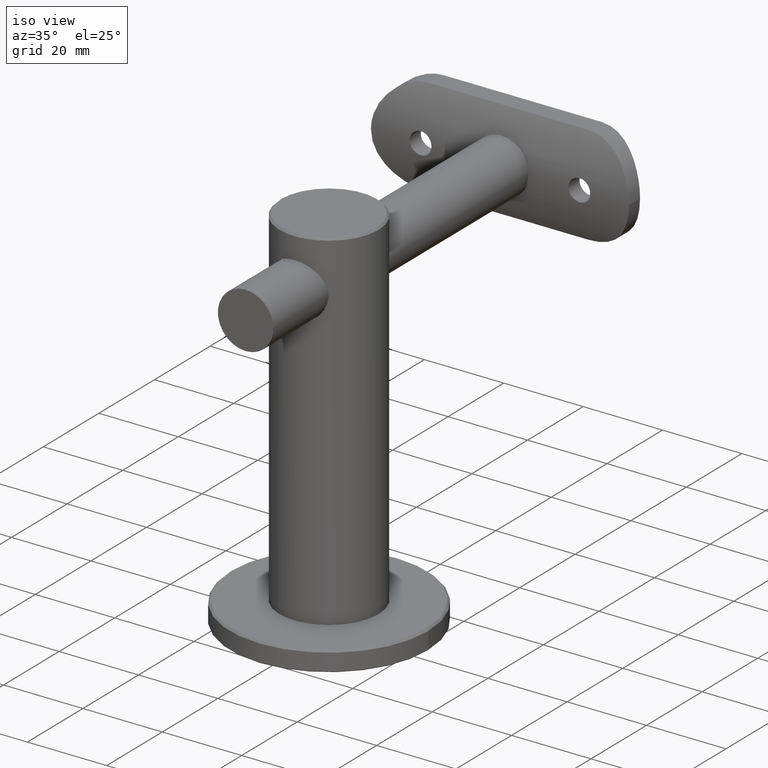
[diagram: clean part render]
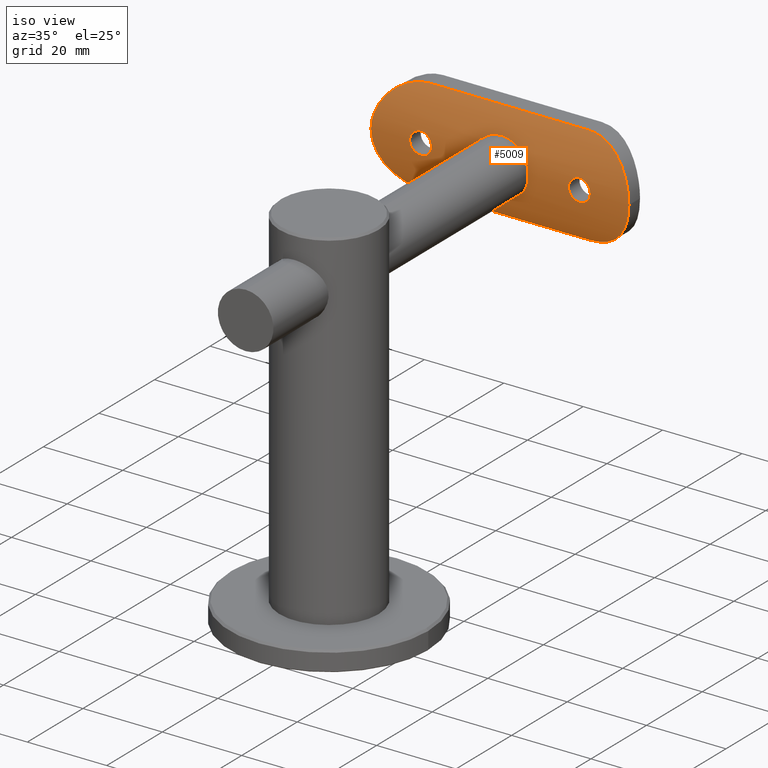
[diagram: same view with one face highlighted and labeled with its STEP entity id]
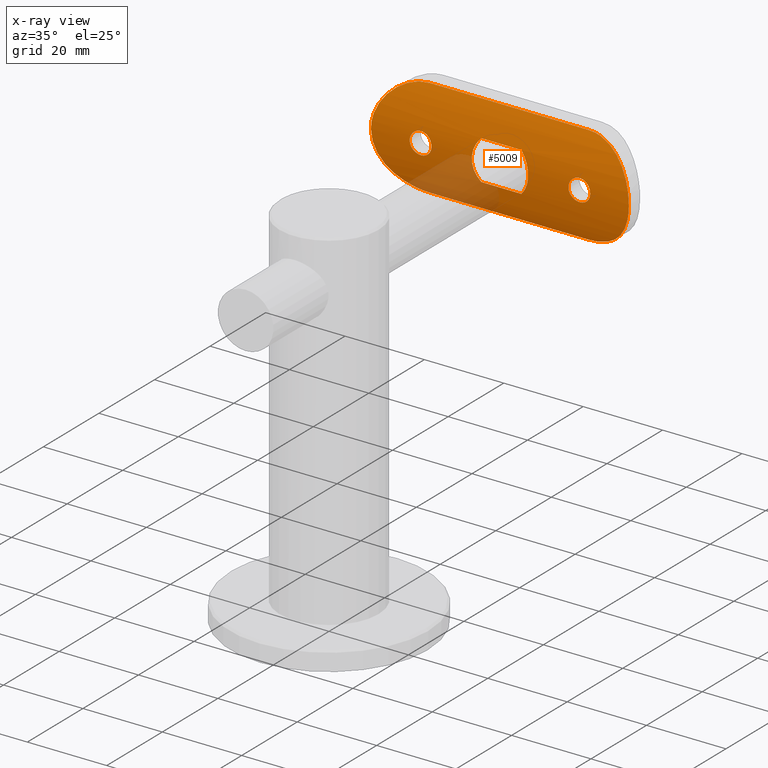
[diagram: x-ray of the same camera — body ghosted, the highlighted face saturated]
A machine part, iso view. The second image highlights one B-rep face of the part: STEP entity #5009.
The next image is the same camera in x-ray: the body ghosted, the highlighted face saturated — about 12% of this face is hidden behind the body in this view.
In plain terms, the highlighted cylindrical surface (partial cylindrical patch) has radius 25.2 mm, axis along (1, -0, 0).
Its self-contained STEP definition (entity closure, byte-faithful):
#1 = CARTESIAN_POINT ( 'NONE',  ( 2.073653546376744900, 0.08513349553396418200, 21.81532595737790800 ) ) ;
#87 = CARTESIAN_POINT ( 'NONE',  ( -12.06660317602190500, 3.076343127531646600, 23.28902056191594000 ) ) ;
#111 = B_SPLINE_CURVE_WITH_KNOTS ( 'NONE', 3,
 ( #5653, #5470, #17830, #11988, #10469, #9129, #7841, #16624, #15221, #9578, #15545, #3729, #4095, #7056, #12914, #17619, #11637, #14542, #4521, #1604, #11768, #7288, #4464, #14673, #1, #14607, #10264, #5940, #13272, #7362, #8900, #14741, #18859, #6012, #17551, #1478, #16221, #2946, #13148, #7485, #8840, #195, #1414, #10445, #1676, #11899, #15964, #7228, #2878, #17424, #8715, #4324, #5808, #17743, #11963, #3269, #266, #13596, #14937, #3336, #13531, #3203, #4839, #2002 ),
 .UNSPECIFIED., .T., .F.,
 ( 4, 2, 2, 2, 2, 2, 2, 2, 2, 2, 2, 2, 2, 2, 2, 2, 2, 2, 2, 2, 2, 2, 2, 2, 2, 2, 2, 2, 2, 2, 2, 4 ),
 ( 0.0000000000000000000, 0.0005376963078605473300, 0.001075392615721094700, 0.001613088923581641700, 0.002150785231442188900, 0.002688481539302735700, 0.003226177847163282900, 0.003763874155023830500, 0.004301570462884377700, 0.004839266770744924500, 0.005376963078605472200, 0.005914659386466019800, 0.006452355694326566600, 0.006990052002187115100, 0.007527748310047661900, 0.008065444617908208700, 0.008603140925768755500, 0.009140837233629302300, 0.009678533541489849100, 0.01021622984935039800, 0.01075392615721094400, 0.01129162246507149100, 0.01182931877293204000, 0.01236701508079258600, 0.01290471138865313300, 0.01344240769651368200, 0.01398010400437423000, 0.01451780031223477700, 0.01505549662009532400, 0.01559319292795587100, 0.01613088923581641700, 0.01720628185153751100 ),
 .UNSPECIFIED. ) ;
#195 = CARTESIAN_POINT ( 'NONE',  ( -2.069558421788440800, 0.08480296112250522400, 21.81976993483585800 ) ) ;
#266 = CARTESIAN_POINT ( 'NONE',  ( -2.072726223509238100, 0.08506532795061354200, 18.18383943284823100 ) ) ;
#317 = CARTESIAN_POINT ( 'NONE',  ( 1.817061344522501000, 0.06526613155028911100, -17.92786693666336000 ) ) ;
#381 = CARTESIAN_POINT ( 'NONE',  ( 1.676634523661784800, 0.05539215588773881100, -22.18716190209918800 ) ) ;
#418 = CARTESIAN_POINT ( 'NONE',  ( 1.830359086947568100, 0.06557914085616385600, 6.863909200536369300 ) ) ;
#420 = CARTESIAN_POINT ( 'NONE',  ( -2.273074970050259900, 0.1017439551615989100, -6.730274443208860400 ) ) ;
#444 = CARTESIAN_POINT ( 'NONE',  ( 2.185263950968388000, 0.09472546798508069100, -21.67922847164829000 ) ) ;
#565 = CARTESIAN_POINT ( 'NONE',  ( -8.562141571826803200, 1.497233673915071600, -29.11593343704042900 ) ) ;
#763 = CARTESIAN_POINT ( 'NONE',  ( 6.305223603466181700, 0.7914857843385466600, 30.82374023567219400 ) ) ;
#782 = CARTESIAN_POINT ( 'NONE',  ( -2.069558421788440800, 0.08480296112250522400, -18.18023006516413500 ) ) ;
#828 = CARTESIAN_POINT ( 'NONE',  ( 2.886391478844331400, 0.1625181075792130100, 32.16925023365995900 ) ) ;
#890 = CARTESIAN_POINT ( 'NONE',  ( 7.315607594578458400, 1.082687997029818900, 30.14380031678956200 ) ) ;
#910 = CARTESIAN_POINT ( 'NONE',  ( -1.819417407537205600, 0.06544494374165607500, -22.06986799106862700 ) ) ;
#937 = VERTEX_POINT ( 'NONE', #4509 ) ;
#945 = CARTESIAN_POINT ( 'NONE',  ( -4.994997497496856700, 0.4999999999999991700, -5.045790324617162700 ) ) ;
#976 = CARTESIAN_POINT ( 'NONE',  ( -2.470123651906078500, 0.1212575395616176900, -18.77792789282884900 ) ) ;
#985 = DIRECTION ( 'NONE',  ( -0.0000000000000000000, -0.0000000000000000000, -1.000000000000000000 ) ) ;
#1030 = ORIENTED_EDGE ( 'NONE', *, *, #15794, .T. ) ;
#1072 = EDGE_CURVE ( 'NONE', #17527, #17527, #4319, .T. ) ;
#1096 = CARTESIAN_POINT ( 'NONE',  ( -2.731820268643169400, 0.1484849599549444800, -19.63697138104300400 ) ) ;
#1202 = CARTESIAN_POINT ( 'NONE',  ( 12.50000000000000000, 3.318729470161015300, -20.00000000000000400 ) ) ;
#1414 = CARTESIAN_POINT ( 'NONE',  ( -2.185750387791615300, 0.09477035522006684000, 21.67847060494677800 ) ) ;
#1478 = CARTESIAN_POINT ( 'NONE',  ( -0.7120159435524258100, 0.009435281127677450400, 22.66238119459136900 ) ) ;
#1534 = ORIENTED_EDGE ( 'NONE', *, *, #15554, .T. ) ;
#1541 = LINE ( 'NONE', #5332, #7486 ) ;
#1554 = CARTESIAN_POINT ( 'NONE',  ( -11.68341459577139600, 2.871341540761538400, 24.46233648995673000 ) ) ;
#1604 = CARTESIAN_POINT ( 'NONE',  ( 2.662015092243951400, 0.1409712463223793700, 20.71310843724691600 ) ) ;
#1676 = CARTESIAN_POINT ( 'NONE',  ( -2.470123651906078500, 0.1212575395616176900, 21.22207210717114700 ) ) ;
#1752 = CARTESIAN_POINT ( 'NONE',  ( -9.398516132625633900, 1.816575251650668400, 28.25106046154295900 ) ) ;
#1763 = CARTESIAN_POINT ( 'NONE',  ( 0.4656168709977870900, 6.200468506438461300E-005, -7.099779927010543700 ) ) ;
#1826 = CARTESIAN_POINT ( 'NONE',  ( 3.133655492777244900, 0.1947508517584462800, -6.375227489737989500 ) ) ;
#1843 = CARTESIAN_POINT ( 'NONE',  ( 12.50000000000000000, 3.318729470161016200, 20.84092147420122400 ) ) ;
#1892 = CARTESIAN_POINT ( 'NONE',  ( 2.914907161408982500, 0.1682403631973951900, 6.478125833712447900 ) ) ;
#1921 = CARTESIAN_POINT ( 'NONE',  ( 2.073653546376744900, 0.08513349553396418200, -18.18467404262209900 ) ) ;
#1974 = CARTESIAN_POINT ( 'NONE',  ( 1.209856822645558900E-015, 0.0000000000000000000, -32.50000000000000000 ) ) ;
#1976 = VERTEX_POINT ( 'NONE', #17441 ) ;
#2002 = CARTESIAN_POINT ( 'NONE',  ( -3.022213555803343600E-015, 1.003890900449541200E-018, 17.25000000000000000 ) ) ;
#2015 = ORIENTED_EDGE ( 'NONE', *, *, #10316, .T. ) ;
#2164 = CARTESIAN_POINT ( 'NONE',  ( 10.15187181039420300, 2.133985303426431600, 27.30437927746717700 ) ) ;
#2290 = CARTESIAN_POINT ( 'NONE',  ( 12.07039748615804700, 3.078414103210624000, 23.27518083691608900 ) ) ;
#2360 = B_SPLINE_CURVE_WITH_KNOTS ( 'NONE', 3,
 ( #11487, #5457, #2720, #9941, #8501, #11370, #15876, #7143, #11312, #2783, #2616, #14447, #5584, #12933, #15636, #11427, #18656, #12825, #8380, #4064, #6902, #14272, #5525, #15758, #10000, #1202 ),
 .UNSPECIFIED., .F., .F.,
 ( 4, 2, 2, 2, 2, 2, 2, 2, 2, 2, 2, 2, 4 ),
 ( 2.353484509981722500E-018, 0.002483427128890327100, 0.003725140693335492400, 0.004966854257780656800, 0.007450281386670990800, 0.008691994951116157800, 0.009933708515561325700, 0.01117542208000649500, 0.01241713564445166100, 0.01490056277334198700, 0.01614227633778715600, 0.01738398990223232300, 0.01986741703112264800 ),
 .UNSPECIFIED. ) ;
#2376 = CARTESIAN_POINT ( 'NONE',  ( -2.661578037767907900, 0.1409247949840577200, -19.28541333120258000 ) ) ;
#2382 = EDGE_CURVE ( 'NONE', #4321, #14128, #16520, .T. ) ;
#2616 = CARTESIAN_POINT ( 'NONE',  ( 7.643915563752460500, 1.185045859685578000, -29.89864509263436400 ) ) ;
#2656 = CARTESIAN_POINT ( 'NONE',  ( -1.209856822645562100E-015, 0.0000000000000000000, 32.50000000000000000 ) ) ;
#2720 = CARTESIAN_POINT ( 'NONE',  ( 1.664684350995175600, 0.04192139592814692100, -32.41608617209117700 ) ) ;
#2767 = CARTESIAN_POINT ( 'NONE',  ( -0.8406273536774224700, -1.486542822431297100E-016, 32.50000000000000000 ) ) ;
#2783 = CARTESIAN_POINT ( 'NONE',  ( 7.316861939614360800, 1.083062932609342200, -30.14291416132809700 ) ) ;
#2832 = CARTESIAN_POINT ( 'NONE',  ( -1.664684350995174100, 0.04192139592814297200, 32.41608617209118400 ) ) ;
#2878 = CARTESIAN_POINT ( 'NONE',  ( -2.749828545533612400, 0.1504801842529881500, 20.18432670744931200 ) ) ;
#2946 = CARTESIAN_POINT ( 'NONE',  ( -1.216669511711981500, 0.02884268894349241800, 22.47271114161703700 ) ) ;
#3029 = CARTESIAN_POINT ( 'NONE',  ( -12.41600094213971900, 3.270152093552302300, 21.66693629175975000 ) ) ;
#3096 = CARTESIAN_POINT ( 'NONE',  ( -12.49999999999999800, 3.318729470161012200, 20.84105733039344700 ) ) ;
#3106 = CARTESIAN_POINT ( 'NONE',  ( -2.281614636188990600, 0.09982408389272989800, 6.739271544212016400 ) ) ;
#3107 = CARTESIAN_POINT ( 'NONE',  ( -3.123006625712111600, 0.1934196831263914100, -6.380438473769691800 ) ) ;
#3187 = CARTESIAN_POINT ( 'NONE',  ( -1.209856822645562100E-015, 0.0000000000000000000, 32.50000000000000000 ) ) ;
#3203 = CARTESIAN_POINT ( 'NONE',  ( -0.7249299550236874000, 0.008254449365853299600, 17.32320072217374100 ) ) ;
#3221 = CARTESIAN_POINT ( 'NONE',  ( -8.562866471435933500, 1.497495063479010700, 29.11525600394245900 ) ) ;
#3258 = CARTESIAN_POINT ( 'NONE',  ( 2.386301682847428800, 0.1130362111777580100, -21.37867729140496600 ) ) ;
#3269 = CARTESIAN_POINT ( 'NONE',  ( -2.188670967206007000, 0.09502580618899343600, 18.32533766186938700 ) ) ;
#3296 = CARTESIAN_POINT ( 'NONE',  ( 4.665793147243431500, 0.4334261171789093900, -5.371680779806795600 ) ) ;
#3336 = CARTESIAN_POINT ( 'NONE',  ( -1.380855856035093600, 0.03741134485516903200, 17.61496082815984100 ) ) ;
#3360 = CARTESIAN_POINT ( 'NONE',  ( -4.994997497496856700, 0.4999999999999991700, 5.045790324617160900 ) ) ;
#3361 = CARTESIAN_POINT ( 'NONE',  ( -1.603205227917014400, 0.05000980514690531900, -6.920540569811120000 ) ) ;
#3387 = CARTESIAN_POINT ( 'NONE',  ( -0.8856267548469305400, 0.01502212965470483600, -17.39035436472577300 ) ) ;
#3550 = CARTESIAN_POINT ( 'NONE',  ( 4.665759523029464600, 0.4334193174677872800, 5.371714065546747500 ) ) ;
#3586 = CARTESIAN_POINT ( 'NONE',  ( 12.50000000000000000, 3.318729470161015300, 32.50000000000000000 ) ) ;
#3702 = CARTESIAN_POINT ( 'NONE',  ( -2.185750387791615300, 0.09477035522006684000, -18.32152939505322200 ) ) ;
#3729 = CARTESIAN_POINT ( 'NONE',  ( 2.386301682847428800, 0.1130362111777580100, 18.62132270859503800 ) ) ;
#3744 = CARTESIAN_POINT ( 'NONE',  ( 5.594010815491765600, 0.6168360506386491000, 31.20802645236640800 ) ) ;
#4064 = CARTESIAN_POINT ( 'NONE',  ( 11.68341459577140100, 2.871341540761537000, -24.46233648995672600 ) ) ;
#4095 = CARTESIAN_POINT ( 'NONE',  ( 2.471650428507672400, 0.1214095703856710900, 18.78118374155257400 ) ) ;
#4319 = B_SPLINE_CURVE_WITH_KNOTS ( 'NONE', 3,
 ( #7673, #9217, #14927, #10559, #9091, #5211, #16458, #381, #6717, #15380, #444, #3258, #7598, #15049, #6648, #10622, #4826, #12012, #10687, #17987, #4762, #7802, #17791, #12473, #1921, #317, #12139, #4703, #17859, #9148, #12074, #13519, #14986, #8131, #13893, #18305, #3387, #7734, #13583, #6323, #9549, #782, #3702, #5149, #976, #6974, #2376, #1096, #18548, #18609, #6786, #12592, #5279, #18368, #15646, #14151, #6909, #910, #11323, #15707, #8446, #5533, #9816, #17176 ),
 .UNSPECIFIED., .T., .F.,
 ( 4, 2, 2, 2, 2, 2, 2, 2, 2, 2, 2, 2, 2, 2, 2, 2, 2, 2, 2, 2, 2, 2, 2, 2, 2, 2, 2, 2, 2, 2, 2, 4 ),
 ( 0.0000000000000000000, 0.0005376963078605473300, 0.001075392615721094700, 0.001613088923581641700, 0.002150785231442188900, 0.002688481539302735700, 0.003226177847163282900, 0.003763874155023830500, 0.004301570462884377700, 0.004839266770744924500, 0.005376963078605472200, 0.005914659386466019800, 0.006452355694326566600, 0.006990052002187115100, 0.007527748310047661900, 0.008065444617908208700, 0.008603140925768755500, 0.009140837233629302300, 0.009678533541489849100, 0.01021622984935039800, 0.01075392615721094400, 0.01129162246507149100, 0.01182931877293204000, 0.01236701508079258600, 0.01290471138865313300, 0.01344240769651368200, 0.01398010400437423000, 0.01451780031223477700, 0.01505549662009532400, 0.01559319292795587100, 0.01613088923581641700, 0.01720628185153751100 ),
 .UNSPECIFIED. ) ;
#4321 = VERTEX_POINT ( 'NONE', #18074 ) ;
#4324 = CARTESIAN_POINT ( 'NONE',  ( -2.662851831080637900, 0.1410605617166262600, 19.29017237568974600 ) ) ;
#4464 = CARTESIAN_POINT ( 'NONE',  ( 2.386239413729367900, 0.1130344673802468600, 21.37856324313335700 ) ) ;
#4509 = CARTESIAN_POINT ( 'NONE',  ( -12.50000000000000200, 3.318729470161017000, 20.00000000000000000 ) ) ;
#4521 = CARTESIAN_POINT ( 'NONE',  ( 2.732219109786985000, 0.1485284830393416300, 20.36031476617275600 ) ) ;
#4611 = CARTESIAN_POINT ( 'NONE',  ( 2.489941231862717900, 0.1224030868951994400, 6.653043719901135400 ) ) ;
#4703 = CARTESIAN_POINT ( 'NONE',  ( 1.380666017043686900, 0.03740890557566172600, -17.61497842031181100 ) ) ;
#4737 = CARTESIAN_POINT ( 'NONE',  ( -4.665793147243437700, 0.4334261171789095500, 5.371680779806788500 ) ) ;
#4739 = CARTESIAN_POINT ( 'NONE',  ( -2.489941231862725000, 0.1224030868951996900, -6.653043719901133600 ) ) ;
#4762 = CARTESIAN_POINT ( 'NONE',  ( 2.610072529365965900, 0.1354370374165251300, -19.11540543342162100 ) ) ;
#4799 = CARTESIAN_POINT ( 'NONE',  ( -2.914907161408990500, 0.1682403631973953800, -6.478125833712443400 ) ) ;
#4826 = CARTESIAN_POINT ( 'NONE',  ( 2.749900915103868900, 0.1504881291677881400, -20.18100206722673900 ) ) ;
#4839 = CARTESIAN_POINT ( 'NONE',  ( -0.3636462283492926700, 0.0000000000000000000, 17.24999999999999600 ) ) ;
#4872 = CARTESIAN_POINT ( 'NONE',  ( -3.291592242805510000, 0.2126942720887817800, -32.06594161125494900 ) ) ;
#4884 = CARTESIAN_POINT ( 'NONE',  ( 4.994997497496849600, 0.4999999999999991700, -5.045790324617169800 ) ) ;
#4935 = CARTESIAN_POINT ( 'NONE',  ( -7.315607594578457600, 1.082687997029816700, -30.14380031678957300 ) ) ;
#5009 = ADVANCED_FACE ( 'NONE', ( #10163, #13063, #9008, #7155 ), #14437, .T. ) ;
#5149 = CARTESIAN_POINT ( 'NONE',  ( -2.385525403948509200, 0.1129649256436709000, -18.62013157275127300 ) ) ;
#5190 = CARTESIAN_POINT ( 'NONE',  ( 11.21365936985682400, 2.629676505859719300, 25.58293283478850500 ) ) ;
#5211 = CARTESIAN_POINT ( 'NONE',  ( 1.219906905157512000, 0.02899303081724164900, -22.47119601631412800 ) ) ;
#5257 = CARTESIAN_POINT ( 'NONE',  ( 8.562141571826803200, 1.497233673915076900, 29.11593343704043600 ) ) ;
#5279 = CARTESIAN_POINT ( 'NONE',  ( -2.610093657089505000, 0.1354392107475779500, -20.88453833690586900 ) ) ;
#5332 = CARTESIAN_POINT ( 'NONE',  ( -12.50000000000000200, 3.318729470161017000, 32.50000000000000000 ) ) ;
#5457 = CARTESIAN_POINT ( 'NONE',  ( 0.8406273536774225800, 6.479802046495397600E-017, -32.50000000000000700 ) ) ;
#5470 = CARTESIAN_POINT ( 'NONE',  ( 0.1818231141746421100, 1.505836350674312500E-018, 17.25000000000000000 ) ) ;
#5525 = CARTESIAN_POINT ( 'NONE',  ( 12.16969663537520900, 3.133117325917488500, -22.88442763853375800 ) ) ;
#5533 = CARTESIAN_POINT ( 'NONE',  ( -0.7249299550236874000, 0.008254449365853299600, -22.67679927782626200 ) ) ;
#5584 = CARTESIAN_POINT ( 'NONE',  ( 8.562866471435931700, 1.497495063479014500, -29.11525600394245600 ) ) ;
#5594 = EDGE_CURVE ( 'NONE', #17780, #17099, #11943, .T. ) ;
#5597 = CARTESIAN_POINT ( 'NONE',  ( -3.086109933851329800E-015, 0.0000000000000000000, 17.25000000000000000 ) ) ;
#5653 = CARTESIAN_POINT ( 'NONE',  ( -3.022213555803343600E-015, 1.003890900449541200E-018, 17.25000000000000000 ) ) ;
#5717 = B_SPLINE_CURVE_WITH_KNOTS ( 'NONE', 3,
 ( #14835, #3296, #13557, #6100, #16368, #1826, #7643, #9253, #7572, #10726, #1763, #11858, #11986, #3361, #13420, #420, #4739, #4799, #3107, #7511, #16497, #6224, #7839, #12433 ),
 .UNSPECIFIED., .F., .F.,
 ( 4, 2, 2, 2, 2, 2, 2, 2, 2, 2, 2, 4 ),
 ( 1.231416953172543800E-018, 0.001384540222823983300, 0.002076810334235974500, 0.002769080445647965300, 0.004153620668471949900, 0.005538160891295934100, 0.006922701114119918200, 0.007614971225531911600, 0.008307241336943905000, 0.008999511448355895800, 0.009691781559767888300, 0.01107632178259187300 ),
 .UNSPECIFIED. ) ;
#5808 = CARTESIAN_POINT ( 'NONE',  ( -2.610093657089505000, 0.1354392107475779500, 19.11546166309413100 ) ) ;
#5940 = CARTESIAN_POINT ( 'NONE',  ( 1.380666017043686900, 0.03740890557566172600, 22.38502157968819300 ) ) ;
#6012 = CARTESIAN_POINT ( 'NONE',  ( -0.1785103872047084900, -7.230720987519904700E-006, 22.75006625970228300 ) ) ;
#6100 = CARTESIAN_POINT ( 'NONE',  ( 3.738393870716938400, 0.2780888453037555500, -6.040429659986549500 ) ) ;
#6160 = CARTESIAN_POINT ( 'NONE',  ( 4.308570940735830100, 0.3679964692497905100, 5.662153196984631300 ) ) ;
#6173 = CARTESIAN_POINT ( 'NONE',  ( -12.41604513394916200, 3.270190002513735800, -21.66440971848880200 ) ) ;
#6224 = CARTESIAN_POINT ( 'NONE',  ( -4.308570940735833700, 0.3679964692497905100, -5.662153196984623300 ) ) ;
#6292 = AXIS2_PLACEMENT_3D ( 'NONE', #17464, #17525, #8816 ) ;
#6323 = CARTESIAN_POINT ( 'NONE',  ( -1.677345939819365500, 0.05543398146316489600, -17.81329150014001400 ) ) ;
#6374 = CARTESIAN_POINT ( 'NONE',  ( -7.642973678624866100, 1.184744735341880300, -29.89937630247454000 ) ) ;
#6561 = CARTESIAN_POINT ( 'NONE',  ( -0.8408319059978900400, 1.018321832143503400E-016, -32.50000000000000700 ) ) ;
#6591 = VERTEX_POINT ( 'NONE', #7908 ) ;
#6628 = CARTESIAN_POINT ( 'NONE',  ( 9.397641427769132200, 1.816225346274615400, 28.25204418689427000 ) ) ;
#6648 = CARTESIAN_POINT ( 'NONE',  ( 2.661705593711257900, 0.1409380217995085700, -20.71455238925592800 ) ) ;
#6655 = CARTESIAN_POINT ( 'NONE',  ( 12.50000000000000000, 3.318729470161015300, -20.00000000000000400 ) ) ;
#6717 = CARTESIAN_POINT ( 'NONE',  ( 1.818016968207421600, 0.06534322333056039000, -22.07109694667252600 ) ) ;
#6765 = CARTESIAN_POINT ( 'NONE',  ( 10.83002449294436100, 2.440458914311944800, 26.29431497601598600 ) ) ;
#6786 = CARTESIAN_POINT ( 'NONE',  ( -2.732467930018714200, 0.1485560364823961000, -20.35812587443899000 ) ) ;
#6902 = CARTESIAN_POINT ( 'NONE',  ( 11.82318603278414100, 2.945306615177195800, -24.07833795785315400 ) ) ;
#6909 = CARTESIAN_POINT ( 'NONE',  ( -2.072726223509238100, 0.08506532795061354200, -21.81616056715177300 ) ) ;
#6974 = CARTESIAN_POINT ( 'NONE',  ( -2.608473453632077300, 0.1352697901134876900, -19.11070964666859600 ) ) ;
#7056 = CARTESIAN_POINT ( 'NONE',  ( 2.608843319927516300, 0.1353098900234726000, 19.11202170934895500 ) ) ;
#7143 = CARTESIAN_POINT ( 'NONE',  ( 5.592058036261039300, 0.6162643484422571900, -31.20930733956447900 ) ) ;
#7155 = FACE_BOUND ( 'NONE', #16483, .T. ) ;
#7228 = CARTESIAN_POINT ( 'NONE',  ( -2.731820268643169400, 0.1484849599549444800, 20.36302861895698200 ) ) ;
#7288 = CARTESIAN_POINT ( 'NONE',  ( 2.472284963185946300, 0.1214712916673118500, 21.21769996985116800 ) ) ;
#7362 = CARTESIAN_POINT ( 'NONE',  ( 0.8869094027111561500, 0.01506087950911032800, 22.60928658375508200 ) ) ;
#7378 = CARTESIAN_POINT ( 'NONE',  ( -11.82318603278413600, 2.945306615177188700, 24.07833795785315400 ) ) ;
#7485 = CARTESIAN_POINT ( 'NONE',  ( -1.677345939819365500, 0.05543398146316489600, 22.18670849985998200 ) ) ;
#7486 = VECTOR ( 'NONE', #17167, 1000.000000000000000 ) ;
#7511 = CARTESIAN_POINT ( 'NONE',  ( -3.530406113401050500, 0.2476762163730966400, -6.164365188424736400 ) ) ;
#7563 = CARTESIAN_POINT ( 'NONE',  ( -5.592058036261043700, 0.6162643484422564200, 31.20930733956448200 ) ) ;
#7572 = CARTESIAN_POINT ( 'NONE',  ( 1.841547510034393400, 0.06328123981739079700, -6.872566350633619900 ) ) ;
#7598 = CARTESIAN_POINT ( 'NONE',  ( 2.471650428507672400, 0.1214095703856710900, -21.21881625844744300 ) ) ;
#7643 = CARTESIAN_POINT ( 'NONE',  ( 2.922350807109698900, 0.1690988006407110900, -6.474816779945183700 ) ) ;
#7673 = CARTESIAN_POINT ( 'NONE',  ( -3.022213555803343600E-015, 1.003890900449541200E-018, -22.75000000000000400 ) ) ;
#7707 = CARTESIAN_POINT ( 'NONE',  ( -0.9353419466195506100, 0.01327606251412118500, 7.053268810875516200 ) ) ;
#7734 = CARTESIAN_POINT ( 'NONE',  ( -1.216669511711981500, 0.02884268894349241800, -17.52728885838296000 ) ) ;
#7802 = CARTESIAN_POINT ( 'NONE',  ( 2.472284963185946300, 0.1214712916673118500, -18.78230003014883900 ) ) ;
#7839 = CARTESIAN_POINT ( 'NONE',  ( -4.665759523029470800, 0.4334193174677875600, -5.371714065546742100 ) ) ;
#7841 = CARTESIAN_POINT ( 'NONE',  ( 1.377805723765353600, 0.03724859345294361000, 17.61328009613861000 ) ) ;
#7903 = EDGE_CURVE ( 'NONE', #1976, #17780, #11276, .T. ) ;
#7908 = CARTESIAN_POINT ( 'NONE',  ( 12.50000000000000000, 3.318729470161015300, 20.00000000000000000 ) ) ;
#7917 = CARTESIAN_POINT ( 'NONE',  ( -6.305223603466179000, 0.7914857843385435500, -30.82374023567219000 ) ) ;
#7923 = CARTESIAN_POINT ( 'NONE',  ( 12.50000000000000000, 3.318729470161015300, 20.00000000000000000 ) ) ;
#8040 = CARTESIAN_POINT ( 'NONE',  ( -5.594010815491759400, 0.6168360506386475500, -31.20802645236642200 ) ) ;
#8046 = CARTESIAN_POINT ( 'NONE',  ( 12.17172894015757300, 3.134241449003883200, 22.87552147047213300 ) ) ;
#8104 = CARTESIAN_POINT ( 'NONE',  ( 8.265288067340185000, 1.391754679466063800, 29.38603808824741000 ) ) ;
#8131 = CARTESIAN_POINT ( 'NONE',  ( -0.1785103872047084900, -7.230720987519904700E-006, -17.24993374029772000 ) ) ;
#8194 = CARTESIAN_POINT ( 'NONE',  ( -3.086109933851329800E-015, 0.0000000000000000000, -22.75000000000000000 ) ) ;
#8380 = CARTESIAN_POINT ( 'NONE',  ( 11.21245238722106700, 2.629098992545239300, -25.58474759764792900 ) ) ;
#8405 = CARTESIAN_POINT ( 'NONE',  ( 4.994997497496849600, 0.4999999999999987200, 5.045790324617166300 ) ) ;
#8446 = CARTESIAN_POINT ( 'NONE',  ( -1.221008448908832200, 0.02905384774760283100, -22.47056831944771800 ) ) ;
#8501 = CARTESIAN_POINT ( 'NONE',  ( 3.277855041561021500, 0.2108776143917516500, -32.06970119788353200 ) ) ;
#8606 = CARTESIAN_POINT ( 'NONE',  ( -2.877492456091672100, 0.1615283928029628600, 32.17128298990891700 ) ) ;
#8614 = ORIENTED_EDGE ( 'NONE', *, *, #11550, .T. ) ;
#8666 = CARTESIAN_POINT ( 'NONE',  ( -4.070717388981838900, 0.3277296730789934800, 31.82587335543210500 ) ) ;
#8715 = CARTESIAN_POINT ( 'NONE',  ( -2.732467930018714200, 0.1485560364823961000, 19.64187412556100700 ) ) ;
#8816 = DIRECTION ( 'NONE',  ( -1.000000000000000000, 0.0000000000000000000, 0.0000000000000000000 ) ) ;
#8840 = CARTESIAN_POINT ( 'NONE',  ( -1.815801682530029200, 0.06518234375754493300, 22.07304098527961900 ) ) ;
#8855 = CARTESIAN_POINT ( 'NONE',  ( -6.305381315458568300, 0.7915044484486751800, 30.82371801999915600 ) ) ;
#8900 = CARTESIAN_POINT ( 'NONE',  ( 0.7155015208963257900, 0.009542413591082162000, 22.66136842177590400 ) ) ;
#9008 = FACE_BOUND ( 'NONE', #14811, .T. ) ;
#9065 = CARTESIAN_POINT ( 'NONE',  ( -3.738393870716949100, 0.2780888453037525500, 6.040429659986542400 ) ) ;
#9091 = CARTESIAN_POINT ( 'NONE',  ( 0.8869433497665152300, 0.01506211653078296800, -22.60927463150254700 ) ) ;
#9129 = CARTESIAN_POINT ( 'NONE',  ( 1.219906905157512000, 0.02899303081724164900, 17.52880398368586900 ) ) ;
#9137 = CARTESIAN_POINT ( 'NONE',  ( -12.50000000000000200, 3.318729470161017000, -20.00000000000000400 ) ) ;
#9148 = CARTESIAN_POINT ( 'NONE',  ( 0.8869094027111561500, 0.01506087950911032800, -17.39071341624492500 ) ) ;
#9190 = CARTESIAN_POINT ( 'NONE',  ( 1.603205227917006600, 0.05000980514690515200, 6.920540569811120900 ) ) ;
#9217 = CARTESIAN_POINT ( 'NONE',  ( 0.1818231141746421100, 1.505836350674312500E-018, -22.75000000000000400 ) ) ;
#9253 = CARTESIAN_POINT ( 'NONE',  ( 2.281614636188980400, 0.09982408389272957900, -6.739271544212018100 ) ) ;
#9262 = CARTESIAN_POINT ( 'NONE',  ( -11.21365936985682400, 2.629676505859716200, -25.58293283478850500 ) ) ;
#9524 = CARTESIAN_POINT ( 'NONE',  ( -9.397641427769128700, 1.816225346274616300, -28.25204418689426700 ) ) ;
#9529 = CARTESIAN_POINT ( 'NONE',  ( 9.128318860952351300, 1.709465851586692100, 28.54893592778295300 ) ) ;
#9549 = CARTESIAN_POINT ( 'NONE',  ( -1.815801682530029200, 0.06518234375754493300, -17.92695901472038500 ) ) ;
#9578 = CARTESIAN_POINT ( 'NONE',  ( 2.071479021819068000, 0.08496204183978137100, 18.18241838659996600 ) ) ;
#9596 = CARTESIAN_POINT ( 'NONE',  ( 4.083048678825496900, 0.3297619529015468600, 31.82160056614382500 ) ) ;
#9610 = EDGE_LOOP ( 'NONE', ( #18067, #8614, #17707, #1534, #18761, #14181 ) ) ;
#9816 = CARTESIAN_POINT ( 'NONE',  ( -0.3636462283492926700, 0.0000000000000000000, -22.75000000000000700 ) ) ;
#9941 = CARTESIAN_POINT ( 'NONE',  ( 2.877492456091673900, 0.1615283928029670700, -32.17128298990891700 ) ) ;
#10000 = CARTESIAN_POINT ( 'NONE',  ( 12.49999999999999800, 3.318729470161022400, -20.84105733039345800 ) ) ;
#10069 = VECTOR ( 'NONE', #14598, 1000.000000000000000 ) ;
#10095 = CARTESIAN_POINT ( 'NONE',  ( -3.277855041561019300, 0.2108776143917508400, 32.06970119788352500 ) ) ;
#10163 = FACE_BOUND ( 'NONE', #15713, .T. ) ;
#10264 = CARTESIAN_POINT ( 'NONE',  ( 1.678305724944242600, 0.05550718090655796400, 22.18583084428256300 ) ) ;
#10316 = EDGE_CURVE ( 'NONE', #11092, #1976, #18454, .T. ) ;
#10327 = B_SPLINE_CURVE_WITH_KNOTS ( 'NONE', 3,
 ( #2656, #2767, #2832, #8606, #10095, #8666, #18815, #7563, #8855, #16360, #11785, #17566, #3221, #14687, #1752, #16112, #14824, #13351, #13409, #1554, #7378, #87, #16300, #3029, #3096, #16174 ),
 .UNSPECIFIED., .F., .F.,
 ( 4, 2, 2, 2, 2, 2, 2, 2, 2, 2, 2, 2, 4 ),
 ( 2.353484509981723700E-018, 0.002483427128890327100, 0.003725140693335488500, 0.004966854257780649000, 0.007450281386670973500, 0.008691994951116135300, 0.009933708515561297900, 0.01117542208000646100, 0.01241713564445162300, 0.01490056277334195400, 0.01614227633778712500, 0.01738398990223229500, 0.01986741703112264800 ),
 .UNSPECIFIED. ) ;
#10445 = CARTESIAN_POINT ( 'NONE',  ( -2.385525403948509200, 0.1129649256436709000, 21.37986842724874100 ) ) ;
#10469 = CARTESIAN_POINT ( 'NONE',  ( 0.8869433497665152300, 0.01506211653078296800, 17.39072536849745300 ) ) ;
#10543 = ORIENTED_EDGE ( 'NONE', *, *, #1072, .F. ) ;
#10559 = CARTESIAN_POINT ( 'NONE',  ( 0.7122248440711412800, 0.009452900999332530100, -22.66221182546934500 ) ) ;
#10622 = CARTESIAN_POINT ( 'NONE',  ( 2.732399795691078400, 0.1485478414644658700, -20.35951792874973500 ) ) ;
#10687 = CARTESIAN_POINT ( 'NONE',  ( 2.732219109786985000, 0.1485284830393416300, -19.63968523382724400 ) ) ;
#10726 = CARTESIAN_POINT ( 'NONE',  ( 0.9353419466195408400, 0.01327606251412104800, -7.053268810875518800 ) ) ;
#10797 = CARTESIAN_POINT ( 'NONE',  ( -4.468211620779531900, 0.3963447934949447200, -31.68121519372564500 ) ) ;
#11092 = VERTEX_POINT ( 'NONE', #945 ) ;
#11114 = CARTESIAN_POINT ( 'NONE',  ( 3.291592242805515800, 0.2126942720887835300, 32.06594161125493500 ) ) ;
#11246 = LINE ( 'NONE', #3586, #12152 ) ;
#11276 = B_SPLINE_CURVE_WITH_KNOTS ( 'NONE', 3,
 ( #3360, #4737, #15025, #9065, #14962, #11856, #14762, #3106, #16244, #7707, #17896, #17710, #11928, #9190, #418, #13360, #4611, #1892, #11985, #13418, #14903, #6160, #3550, #17958 ),
 .UNSPECIFIED., .F., .F.,
 ( 4, 2, 2, 2, 2, 2, 2, 2, 2, 2, 2, 4 ),
 ( 1.231416953172543800E-018, 0.001384540222823987600, 0.002076810334235979700, 0.002769080445647971800, 0.004153620668471955100, 0.005538160891295939300, 0.006922701114119923400, 0.007614971225531915100, 0.008307241336943908500, 0.008999511448355899300, 0.009691781559767891800, 0.01107632178259187300 ),
 .UNSPECIFIED. ) ;
#11312 = CARTESIAN_POINT ( 'NONE',  ( 6.305381315458570100, 0.7915044484486730700, -30.82371801999915900 ) ) ;
#11323 = CARTESIAN_POINT ( 'NONE',  ( -1.681170296133460500, 0.05569056111167920700, -22.18376765745739800 ) ) ;
#11370 = CARTESIAN_POINT ( 'NONE',  ( 4.070717388981840700, 0.3277296730789947000, -31.82587335543210500 ) ) ;
#11427 = CARTESIAN_POINT ( 'NONE',  ( 9.910013130227611100, 2.028718244006081600, -27.62913782769574700 ) ) ;
#11486 = CARTESIAN_POINT ( 'NONE',  ( 1.209856822645558900E-015, 0.0000000000000000000, -32.50000000000000000 ) ) ;
#11487 = CARTESIAN_POINT ( 'NONE',  ( 1.209856822645558900E-015, 0.0000000000000000000, -32.50000000000000000 ) ) ;
#11519 = EDGE_CURVE ( 'NONE', #937, #4321, #1541, .T. ) ;
#11550 = EDGE_CURVE ( 'NONE', #14128, #15943, #2360, .T. ) ;
#11637 = CARTESIAN_POINT ( 'NONE',  ( 2.749900915103868900, 0.1504881291677881400, 19.81899793277325700 ) ) ;
#11768 = CARTESIAN_POINT ( 'NONE',  ( 2.610072529365965900, 0.1354370374165251300, 20.88459456657838900 ) ) ;
#11785 = CARTESIAN_POINT ( 'NONE',  ( -7.643915563752459600, 1.185045859685579300, 29.89864509263435700 ) ) ;
#11856 = CARTESIAN_POINT ( 'NONE',  ( -3.133655492777255100, 0.1947508517584466700, 6.375227489737984100 ) ) ;
#11858 = CARTESIAN_POINT ( 'NONE',  ( -0.4588809050047771800, -6.155455373303999900E-005, -7.100218475340150300 ) ) ;
#11899 = CARTESIAN_POINT ( 'NONE',  ( -2.608473453632077300, 0.1352697901134876900, 20.88929035333141100 ) ) ;
#11928 = CARTESIAN_POINT ( 'NONE',  ( 0.9183229292021397600, 0.01258690905692846200, 7.055726619037173500 ) ) ;
#11943 = LINE ( 'NONE', #13422, #17383 ) ;
#11963 = CARTESIAN_POINT ( 'NONE',  ( -2.387943004295486100, 0.1131959372493339500, 18.62431734848481200 ) ) ;
#11985 = CARTESIAN_POINT ( 'NONE',  ( 3.123006625712104100, 0.1934196831263911800, 6.380438473769694400 ) ) ;
#11986 = CARTESIAN_POINT ( 'NONE',  ( -0.9183229292021482000, 0.01258690905692859200, -7.055726619037175200 ) ) ;
#11988 = CARTESIAN_POINT ( 'NONE',  ( 0.7122248440711412800, 0.009452900999332530100, 17.33778817453065800 ) ) ;
#12012 = CARTESIAN_POINT ( 'NONE',  ( 2.750098253868888500, 0.1505097935323187500, -19.82202139090123100 ) ) ;
#12058 = CARTESIAN_POINT ( 'NONE',  ( -12.50000000000000200, 3.318729470161017500, -20.84092147420122400 ) ) ;
#12074 = CARTESIAN_POINT ( 'NONE',  ( 0.7155015208963257900, 0.009542413591082162000, -17.33863157822409900 ) ) ;
#12139 = CARTESIAN_POINT ( 'NONE',  ( 1.678305724944242600, 0.05550718090655796400, -17.81416915571743300 ) ) ;
#12152 = VECTOR ( 'NONE', #985, 1000.000000000000000 ) ;
#12313 = CARTESIAN_POINT ( 'NONE',  ( -9.128318860952351300, 1.709465851586686500, -28.54893592778294900 ) ) ;
#12433 = CARTESIAN_POINT ( 'NONE',  ( -4.994997497496856700, 0.4999999999999991700, -5.045790324617162700 ) ) ;
#12473 = CARTESIAN_POINT ( 'NONE',  ( 2.187282045272785200, 0.09490538896707784200, -18.32358346185051400 ) ) ;
#12507 = CARTESIAN_POINT ( 'NONE',  ( 9.908890582928830100, 2.028239840774359600, 27.63058222437334500 ) ) ;
#12592 = CARTESIAN_POINT ( 'NONE',  ( -2.662851831080637900, 0.1410605617166262600, -20.70982762431024700 ) ) ;
#12825 = CARTESIAN_POINT ( 'NONE',  ( 10.83018612312571900, 2.440555194631701200, -26.29386951518687000 ) ) ;
#12914 = CARTESIAN_POINT ( 'NONE',  ( 2.661705593711257900, 0.1409380217995085700, 19.28544761074407500 ) ) ;
#12933 = CARTESIAN_POINT ( 'NONE',  ( 9.129107160068509000, 1.709771713892835000, -28.54809784016516300 ) ) ;
#13063 = FACE_OUTER_BOUND ( 'NONE', #9610, .T. ) ;
#13148 = CARTESIAN_POINT ( 'NONE',  ( -1.376637763934806400, 0.03717905064508811300, 22.38747815321878300 ) ) ;
#13197 = EDGE_CURVE ( 'NONE', #16247, #937, #10327, .T. ) ;
#13272 = CARTESIAN_POINT ( 'NONE',  ( 1.219885514470493900, 0.02899195258491553100, 22.47120701204225000 ) ) ;
#13351 = CARTESIAN_POINT ( 'NONE',  ( -10.83018612312572200, 2.440555194631699900, 26.29386951518687400 ) ) ;
#13360 = CARTESIAN_POINT ( 'NONE',  ( 2.273074970050251900, 0.1017439551615987500, 6.730274443208862100 ) ) ;
#13409 = CARTESIAN_POINT ( 'NONE',  ( -11.21245238722107000, 2.629098992545241000, 25.58474759764793300 ) ) ;
#13418 = CARTESIAN_POINT ( 'NONE',  ( 3.530406113401043400, 0.2476762163730965300, 6.164365188424739900 ) ) ;
#13420 = CARTESIAN_POINT ( 'NONE',  ( -1.830359086947575700, 0.06557914085616403700, -6.863909200536367500 ) ) ;
#13422 = CARTESIAN_POINT ( 'NONE',  ( 4.994997497496849600, 0.4999999999999970000, 32.50000000000000000 ) ) ;
#13519 = CARTESIAN_POINT ( 'NONE',  ( 0.3629020169132031200, 0.001996151179119865500, -17.26812766971967200 ) ) ;
#13531 = CARTESIAN_POINT ( 'NONE',  ( -1.221008448908832200, 0.02905384774760283100, 17.52943168055228900 ) ) ;
#13557 = CARTESIAN_POINT ( 'NONE',  ( 4.310277295134858000, 0.3683571429558116800, -5.660479350592289000 ) ) ;
#13583 = CARTESIAN_POINT ( 'NONE',  ( -1.376637763934806400, 0.03717905064508811300, -17.61252184678121700 ) ) ;
#13596 = CARTESIAN_POINT ( 'NONE',  ( -1.819417407537205600, 0.06544494374165607500, 17.93013200893137700 ) ) ;
#13630 = CARTESIAN_POINT ( 'NONE',  ( -11.68647699581961100, 2.872938612537726300, -24.45450101598523700 ) ) ;
#13689 = CARTESIAN_POINT ( 'NONE',  ( -8.265288067340183200, 1.391754679466064500, -29.38603808824741700 ) ) ;
#13817 = CARTESIAN_POINT ( 'NONE',  ( -1.209856822645562100E-015, 0.0000000000000000000, 32.50000000000000000 ) ) ;
#13893 = CARTESIAN_POINT ( 'NONE',  ( -0.3570321171616389600, 0.001903928532954703600, -17.26727820726263500 ) ) ;
#14002 = CARTESIAN_POINT ( 'NONE',  ( 11.82730682096133100, 2.947497412072441300, 24.06646263368969600 ) ) ;
#14067 = CARTESIAN_POINT ( 'NONE',  ( 1.667268011024895400, 0.04195479554921855600, 32.41603179174910600 ) ) ;
#14128 = VERTEX_POINT ( 'NONE', #11486 ) ;
#14151 = CARTESIAN_POINT ( 'NONE',  ( -2.188670967206007000, 0.09502580618899343600, -21.67466233813061600 ) ) ;
#14181 = ORIENTED_EDGE ( 'NONE', *, *, #11519, .T. ) ;
#14272 = CARTESIAN_POINT ( 'NONE',  ( 12.06660317602190300, 3.076343127531653300, -23.28902056191594400 ) ) ;
#14437 = CYLINDRICAL_SURFACE ( 'NONE', #6292, 25.19999999999999900 ) ;
#14447 = CARTESIAN_POINT ( 'NONE',  ( 8.266035766619463500, 1.392015620549697200, -29.38537545976074500 ) ) ;
#14489 = B_SPLINE_CURVE_WITH_KNOTS ( 'NONE', 3,
 ( #7923, #1843, #15362, #8046, #2290, #14002, #16822, #5190, #6765, #2164, #12507, #6628, #9529, #5257, #8104, #18284, #890, #763, #3744, #15295, #9596, #11114, #828, #14067, #18165, #13817 ),
 .UNSPECIFIED., .F., .F.,
 ( 4, 2, 2, 2, 2, 2, 2, 2, 2, 2, 2, 2, 4 ),
 ( 0.0000000000000000000, 0.002482949619020686600, 0.003724424428531034100, 0.004965899238041381900, 0.007448848857062076800, 0.008690323666572429000, 0.009931798476082781200, 0.01117327328559313200, 0.01241474809510348200, 0.01489769771412418000, 0.01613917252363452800, 0.01738064733314487900, 0.01986359695216558000 ),
 .UNSPECIFIED. ) ;
#14542 = CARTESIAN_POINT ( 'NONE',  ( 2.750098253868888500, 0.1505097935323187500, 20.17797860909876600 ) ) ;
#14598 = DIRECTION ( 'NONE',  ( 0.0000000000000000000, 0.0000000000000000000, 1.000000000000000000 ) ) ;
#14607 = CARTESIAN_POINT ( 'NONE',  ( 1.817061344522501000, 0.06526613155028911100, 22.07213306333665400 ) ) ;
#14673 = CARTESIAN_POINT ( 'NONE',  ( 2.187282045272785200, 0.09490538896707784200, 21.67641653814948200 ) ) ;
#14687 = CARTESIAN_POINT ( 'NONE',  ( -9.129107160068514300, 1.709771713892830100, 28.54809784016517000 ) ) ;
#14741 = CARTESIAN_POINT ( 'NONE',  ( 0.3629020169132031200, 0.001996151179119865500, 22.73187233028030700 ) ) ;
#14762 = CARTESIAN_POINT ( 'NONE',  ( -2.922350807109709100, 0.1690988006407113900, 6.474816779945177500 ) ) ;
#14800 = CARTESIAN_POINT ( 'NONE',  ( -4.994997497496856700, 0.4999999999999970000, 32.50000000000000000 ) ) ;
#14811 = EDGE_LOOP ( 'NONE', ( #10543 ) ) ;
#14824 = CARTESIAN_POINT ( 'NONE',  ( -10.15326211524584600, 2.134602035805860200, 27.30241053714794600 ) ) ;
#14835 = CARTESIAN_POINT ( 'NONE',  ( 4.994997497496849600, 0.4999999999999991700, -5.045790324617169800 ) ) ;
#14903 = CARTESIAN_POINT ( 'NONE',  ( 3.730546378610020600, 0.2768968737302779900, 6.045367177550823500 ) ) ;
#14927 = CARTESIAN_POINT ( 'NONE',  ( 0.3605809178790073100, 0.001966172394627899300, -22.73214520731284000 ) ) ;
#14937 = CARTESIAN_POINT ( 'NONE',  ( -1.681170296133460500, 0.05569056111167920700, 17.81623234254261200 ) ) ;
#14962 = CARTESIAN_POINT ( 'NONE',  ( -3.541283191258498800, 0.2492165439167419200, 6.158135728662855100 ) ) ;
#14986 = CARTESIAN_POINT ( 'NONE',  ( 0.1805460800954207200, 7.271832553067998300E-006, -17.25006663643370400 ) ) ;
#15025 = CARTESIAN_POINT ( 'NONE',  ( -4.310277295134868700, 0.3683571429558086300, 5.660479350592283700 ) ) ;
#15049 = CARTESIAN_POINT ( 'NONE',  ( 2.608843319927516300, 0.1353098900234726000, -20.88797829065103800 ) ) ;
#15056 = ORIENTED_EDGE ( 'NONE', *, *, #5594, .T. ) ;
#15163 = CARTESIAN_POINT ( 'NONE',  ( -4.083048678825491600, 0.3297619529015444800, -31.82160056614383900 ) ) ;
#15221 = CARTESIAN_POINT ( 'NONE',  ( 1.818016968207421600, 0.06534322333056039000, 17.92890305332748100 ) ) ;
#15232 = CARTESIAN_POINT ( 'NONE',  ( -10.83002449294435900, 2.440458914311940000, -26.29431497601599700 ) ) ;
#15295 = CARTESIAN_POINT ( 'NONE',  ( 4.468211620779536400, 0.3963447934949455600, 31.68121519372564500 ) ) ;
#15362 = CARTESIAN_POINT ( 'NONE',  ( 12.41604513394916300, 3.270190002513739400, 21.66440971848879800 ) ) ;
#15380 = CARTESIAN_POINT ( 'NONE',  ( 2.071479021819068000, 0.08496204183978137100, -21.81758161340003400 ) ) ;
#15545 = CARTESIAN_POINT ( 'NONE',  ( 2.185263950968388000, 0.09472546798508069100, 18.32077152835171700 ) ) ;
#15554 = EDGE_CURVE ( 'NONE', #6591, #16247, #14489, .T. ) ;
#15636 = CARTESIAN_POINT ( 'NONE',  ( 9.398516132625633900, 1.816575251650669000, -28.25106046154296300 ) ) ;
#15646 = CARTESIAN_POINT ( 'NONE',  ( -2.387943004295486100, 0.1131959372493339500, -21.37568265151518100 ) ) ;
#15707 = CARTESIAN_POINT ( 'NONE',  ( -1.380855856035093600, 0.03741134485516903200, -22.38503917184014800 ) ) ;
#15713 = EDGE_LOOP ( 'NONE', ( #15056, #1030, #2015, #18379 ) ) ;
#15758 = CARTESIAN_POINT ( 'NONE',  ( 12.41600094213972300, 3.270152093552307200, -21.66693629175975400 ) ) ;
#15794 = EDGE_CURVE ( 'NONE', #17099, #11092, #5717, .T. ) ;
#15876 = CARTESIAN_POINT ( 'NONE',  ( 4.460191993434857100, 0.3948698794312861000, -31.68435314470301000 ) ) ;
#15943 = VERTEX_POINT ( 'NONE', #6655 ) ;
#15964 = CARTESIAN_POINT ( 'NONE',  ( -2.661578037767907900, 0.1409247949840577200, 20.71458666879742000 ) ) ;
#16112 = CARTESIAN_POINT ( 'NONE',  ( -9.910013130227612900, 2.028718244006079800, 27.62913782769574300 ) ) ;
#16174 = CARTESIAN_POINT ( 'NONE',  ( -12.50000000000000200, 3.318729470161017000, 20.00000000000000000 ) ) ;
#16221 = CARTESIAN_POINT ( 'NONE',  ( -0.8856267548469305400, 0.01502212965470483600, 22.60964563527422700 ) ) ;
#16244 = CARTESIAN_POINT ( 'NONE',  ( -1.841547510034403200, 0.06328123981739104700, 6.872566350633617200 ) ) ;
#16247 = VERTEX_POINT ( 'NONE', #3187 ) ;
#16300 = CARTESIAN_POINT ( 'NONE',  ( -12.16969663537520700, 3.133117325917485400, 22.88442763853375100 ) ) ;
#16360 = CARTESIAN_POINT ( 'NONE',  ( -7.316861939614359900, 1.083062932609343500, 30.14291416132808600 ) ) ;
#16368 = CARTESIAN_POINT ( 'NONE',  ( 3.541283191258490300, 0.2492165439167415300, -6.158135728662859500 ) ) ;
#16379 = CARTESIAN_POINT ( 'NONE',  ( -12.17172894015757700, 3.134241449003881500, -22.87552147047214000 ) ) ;
#16458 = CARTESIAN_POINT ( 'NONE',  ( 1.377805723765353600, 0.03724859345294361000, -22.38671990386140500 ) ) ;
#16483 = EDGE_LOOP ( 'NONE', ( #17192 ) ) ;
#16497 = CARTESIAN_POINT ( 'NONE',  ( -3.730546378610028100, 0.2768968737302783800, -6.045367177550819100 ) ) ;
#16520 = B_SPLINE_CURVE_WITH_KNOTS ( 'NONE', 3,
 ( #9137, #12058, #6173, #16379, #16756, #16574, #13630, #9262, #15232, #18160, #16634, #9524, #12313, #565, #13689, #6374, #4935, #7917, #8040, #10797, #15163, #4872, #16694, #17969, #6561, #1974 ),
 .UNSPECIFIED., .F., .F.,
 ( 4, 2, 2, 2, 2, 2, 2, 2, 2, 2, 2, 2, 4 ),
 ( 0.0000000000000000000, 0.002482949619020703500, 0.003724424428531049700, 0.004965899238041395800, 0.007448848857062090700, 0.008690323666572441100, 0.009931798476082793300, 0.01117327328559314600, 0.01241474809510349400, 0.01489769771412419200, 0.01613917252363453900, 0.01738064733314488600, 0.01986359695216558300 ),
 .UNSPECIFIED. ) ;
#16574 = CARTESIAN_POINT ( 'NONE',  ( -11.82730682096132600, 2.947497412072437300, -24.06646263368969900 ) ) ;
#16624 = CARTESIAN_POINT ( 'NONE',  ( 1.676634523661784800, 0.05539215588773881100, 17.81283809790080500 ) ) ;
#16630 = EDGE_CURVE ( 'NONE', #17111, #17111, #111, .T. ) ;
#16634 = CARTESIAN_POINT ( 'NONE',  ( -9.908890582928830100, 2.028239840774360000, -27.63058222437334900 ) ) ;
#16694 = CARTESIAN_POINT ( 'NONE',  ( -2.886391478844328800, 0.1625181075792117600, -32.16925023365995200 ) ) ;
#16756 = CARTESIAN_POINT ( 'NONE',  ( -12.07039748615804300, 3.078414103210621400, -23.27518083691609600 ) ) ;
#16822 = CARTESIAN_POINT ( 'NONE',  ( 11.68647699581960900, 2.872938612537728100, 24.45450101598523000 ) ) ;
#17099 = VERTEX_POINT ( 'NONE', #4884 ) ;
#17111 = VERTEX_POINT ( 'NONE', #5597 ) ;
#17167 = DIRECTION ( 'NONE',  ( -0.0000000000000000000, -0.0000000000000000000, -1.000000000000000000 ) ) ;
#17176 = CARTESIAN_POINT ( 'NONE',  ( -3.022213555803343600E-015, 1.003890900449541200E-018, -22.75000000000000400 ) ) ;
#17192 = ORIENTED_EDGE ( 'NONE', *, *, #16630, .F. ) ;
#17383 = VECTOR ( 'NONE', #17713, 1000.000000000000000 ) ;
#17424 = CARTESIAN_POINT ( 'NONE',  ( -2.750169041540234400, 0.1505175647821541400, 19.82082520304386400 ) ) ;
#17441 = CARTESIAN_POINT ( 'NONE',  ( -4.994997497496856700, 0.4999999999999991700, 5.045790324617160900 ) ) ;
#17464 = CARTESIAN_POINT ( 'NONE',  ( -3.086109933851329800E-015, 25.19999999999999900, 32.50000000000000000 ) ) ;
#17525 = DIRECTION ( 'NONE',  ( -0.0000000000000000000, -0.0000000000000000000, -1.000000000000000000 ) ) ;
#17527 = VERTEX_POINT ( 'NONE', #8194 ) ;
#17551 = CARTESIAN_POINT ( 'NONE',  ( -0.3570321171616389600, 0.001903928532954703600, 22.73272179273735500 ) ) ;
#17566 = CARTESIAN_POINT ( 'NONE',  ( -8.266035766619463500, 1.392015620549697900, 29.38537545976073400 ) ) ;
#17619 = CARTESIAN_POINT ( 'NONE',  ( 2.732399795691078400, 0.1485478414644658700, 19.64048207125026100 ) ) ;
#17707 = ORIENTED_EDGE ( 'NONE', *, *, #18838, .F. ) ;
#17710 = CARTESIAN_POINT ( 'NONE',  ( 0.4588809050047682500, -6.155455373315744500E-005, 7.100218475340150300 ) ) ;
#17713 = DIRECTION ( 'NONE',  ( -0.0000000000000000000, -0.0000000000000000000, -1.000000000000000000 ) ) ;
#17743 = CARTESIAN_POINT ( 'NONE',  ( -2.472286802438094600, 0.1214714462072298400, 18.78229932465918100 ) ) ;
#17780 = VERTEX_POINT ( 'NONE', #8405 ) ;
#17791 = CARTESIAN_POINT ( 'NONE',  ( 2.386239413729367900, 0.1130344673802468600, -18.62143675686666100 ) ) ;
#17830 = CARTESIAN_POINT ( 'NONE',  ( 0.3605809178790073100, 0.001966172394627899300, 17.26785479268716400 ) ) ;
#17859 = CARTESIAN_POINT ( 'NONE',  ( 1.219885514470493900, 0.02899195258491553100, -17.52879298795775400 ) ) ;
#17896 = CARTESIAN_POINT ( 'NONE',  ( -0.4656168709977977500, 6.200468506440110600E-005, 7.099779927010541900 ) ) ;
#17958 = CARTESIAN_POINT ( 'NONE',  ( 4.994997497496849600, 0.4999999999999987200, 5.045790324617166300 ) ) ;
#17969 = CARTESIAN_POINT ( 'NONE',  ( -1.667268011024895000, 0.04195479554921784100, -32.41603179174911300 ) ) ;
#17987 = CARTESIAN_POINT ( 'NONE',  ( 2.662015092243951400, 0.1409712463223793700, -19.28689156275308400 ) ) ;
#18067 = ORIENTED_EDGE ( 'NONE', *, *, #2382, .T. ) ;
#18074 = CARTESIAN_POINT ( 'NONE',  ( -12.50000000000000200, 3.318729470161017000, -20.00000000000000400 ) ) ;
#18160 = CARTESIAN_POINT ( 'NONE',  ( -10.15187181039420000, 2.133985303426428000, -27.30437927746719100 ) ) ;
#18165 = CARTESIAN_POINT ( 'NONE',  ( 0.8408319059978882600, -3.506716401632803900E-016, 32.50000000000000000 ) ) ;
#18284 = CARTESIAN_POINT ( 'NONE',  ( 7.642973678624867900, 1.184744735341880700, 29.89937630247455000 ) ) ;
#18305 = CARTESIAN_POINT ( 'NONE',  ( -0.7120159435524258100, 0.009435281127677450400, -17.33761880540862800 ) ) ;
#18368 = CARTESIAN_POINT ( 'NONE',  ( -2.472286802438094600, 0.1214714462072298400, -21.21770067534082600 ) ) ;
#18379 = ORIENTED_EDGE ( 'NONE', *, *, #7903, .T. ) ;
#18454 = LINE ( 'NONE', #14800, #10069 ) ;
#18548 = CARTESIAN_POINT ( 'NONE',  ( -2.749828545533612400, 0.1504801842529881500, -19.81567329255069200 ) ) ;
#18609 = CARTESIAN_POINT ( 'NONE',  ( -2.750169041540234400, 0.1505175647821541400, -20.17917479695613600 ) ) ;
#18656 = CARTESIAN_POINT ( 'NONE',  ( 10.15326211524584500, 2.134602035805861100, -27.30241053714794600 ) ) ;
#18761 = ORIENTED_EDGE ( 'NONE', *, *, #13197, .T. ) ;
#18815 = CARTESIAN_POINT ( 'NONE',  ( -4.460191993434859700, 0.3948698794312854300, 31.68435314470300700 ) ) ;
#18838 = EDGE_CURVE ( 'NONE', #6591, #15943, #11246, .T. ) ;
#18859 = CARTESIAN_POINT ( 'NONE',  ( 0.1805460800954207200, 7.271832553067998300E-006, 22.74993336356629200 ) ) ;